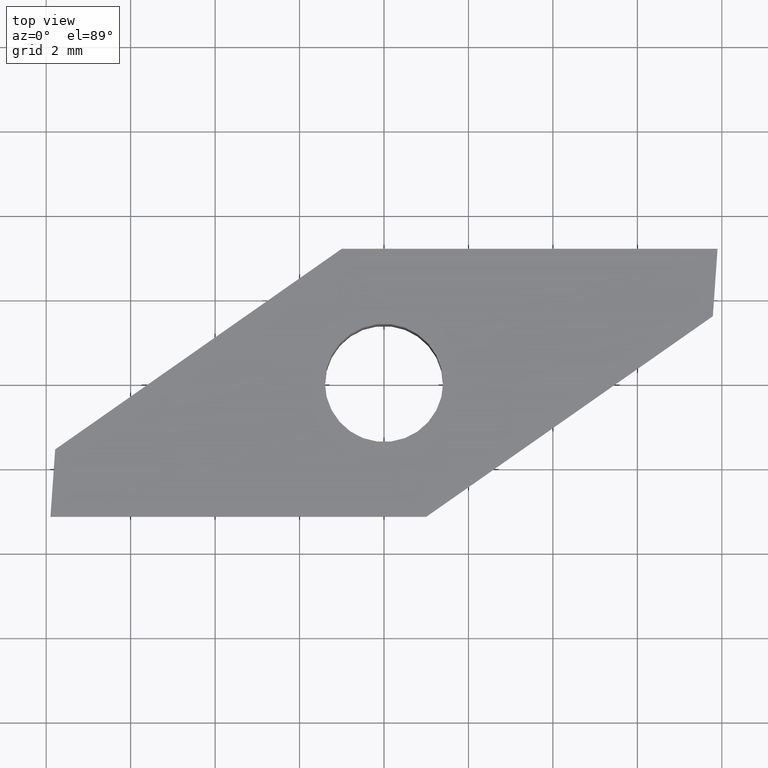
[diagram: clean part render]
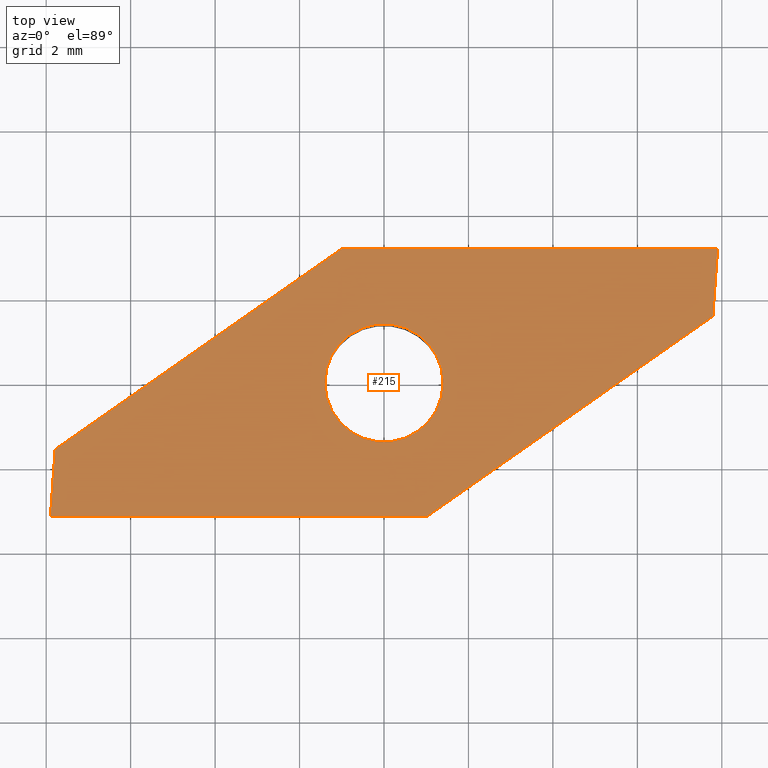
[diagram: same view with one face highlighted and labeled with its STEP entity id]
A machine part, top view. The second image highlights one B-rep face of the part: STEP entity #215.
In plain terms, the highlighted planar face has unit normal (0, 0, -1).
Its self-contained STEP definition (entity closure, byte-faithful):
#7 = VERTEX_POINT ( 'NONE', #110 ) ;
#9 = AXIS2_PLACEMENT_3D ( 'NONE', #133, #132, #345 ) ;
#12 = VERTEX_POINT ( 'NONE', #316 ) ;
#15 = LINE ( 'NONE', #53, #303 ) ;
#19 = ORIENTED_EDGE ( 'NONE', *, *, #319, .T. ) ;
#20 = CARTESIAN_POINT ( 'NONE',  ( 7.900000000000000400, 3.175000000000000700, 0.0000000000000000000 ) ) ;
#35 = VECTOR ( 'NONE', #91, 1000.000000000000200 ) ;
#36 = CARTESIAN_POINT ( 'NONE',  ( -7.788289079147451900, -1.577459403657731600, 0.0000000000000000000 ) ) ;
#45 = DIRECTION ( 'NONE',  ( -1.000000000000000000, -9.744461978823348800E-017, -0.0000000000000000000 ) ) ;
#50 = LINE ( 'NONE', #20, #35 ) ;
#53 = CARTESIAN_POINT ( 'NONE',  ( -1.001073654690764600, 3.174999999999999800, 0.0000000000000000000 ) ) ;
#55 = EDGE_CURVE ( 'NONE', #201, #12, #199, .T. ) ;
#56 = LINE ( 'NONE', #79, #69 ) ;
#64 = CIRCLE ( 'NONE', #282, 1.399999999999999900 ) ;
#66 = VECTOR ( 'NONE', #78, 1000.000000000000000 ) ;
#69 = VECTOR ( 'NONE', #192, 1000.000000000000000 ) ;
#72 = VECTOR ( 'NONE', #312, 1000.000000000000100 ) ;
#76 = LINE ( 'NONE', #347, #66 ) ;
#77 = CARTESIAN_POINT ( 'NONE',  ( 7.900000000000000400, 3.175000000000000700, 0.0000000000000000000 ) ) ;
#78 = DIRECTION ( 'NONE',  ( -0.06975647374412606600, -0.9975640502598242000, -0.0000000000000000000 ) ) ;
#79 = CARTESIAN_POINT ( 'NONE',  ( 1.001073654690762600, -3.174999999999999800, 0.0000000000000000000 ) ) ;
#81 = CARTESIAN_POINT ( 'NONE',  ( -7.900000000000002100, -3.175000000000000700, 0.0000000000000000000 ) ) ;
#83 = DIRECTION ( 'NONE',  ( 1.000000000000000000, 0.0000000000000000000, 0.0000000000000000000 ) ) ;
#84 = DIRECTION ( 'NONE',  ( 0.0000000000000000000, 0.0000000000000000000, 1.000000000000000000 ) ) ;
#87 = CARTESIAN_POINT ( 'NONE',  ( 0.0000000000000000000, 0.0000000000000000000, 0.0000000000000000000 ) ) ;
#91 = DIRECTION ( 'NONE',  ( 0.06975647374412544100, 0.9975640502598242000, -0.0000000000000000000 ) ) ;
#110 = CARTESIAN_POINT ( 'NONE',  ( -1.001073654690764600, 3.174999999999999800, 0.0000000000000000000 ) ) ;
#114 = DIRECTION ( 'NONE',  ( 0.8191520442889952400, 0.5735764363510412700, -0.0000000000000000000 ) ) ;
#119 = CARTESIAN_POINT ( 'NONE',  ( -7.788289079147451900, -1.577459403657731600, 0.0000000000000000000 ) ) ;
#124 = LINE ( 'NONE', #119, #72 ) ;
#131 = CARTESIAN_POINT ( 'NONE',  ( 7.788289079147451100, 1.577459403657729400, 0.0000000000000000000 ) ) ;
#132 = DIRECTION ( 'NONE',  ( 0.0000000000000000000, 0.0000000000000000000, 1.000000000000000000 ) ) ;
#133 = CARTESIAN_POINT ( 'NONE',  ( 0.0000000000000000000, 0.0000000000000000000, 0.0000000000000000000 ) ) ;
#134 = CARTESIAN_POINT ( 'NONE',  ( 0.0000000000000000000, 0.0000000000000000000, 0.0000000000000000000 ) ) ;
#141 = DIRECTION ( 'NONE',  ( 0.0000000000000000000, 0.0000000000000000000, -1.000000000000000000 ) ) ;
#146 = PLANE ( 'NONE',  #335 ) ;
#149 = CIRCLE ( 'NONE', #9, 1.399999999999999900 ) ;
#155 = DIRECTION ( 'NONE',  ( -1.000000000000000000, 0.0000000000000000000, -0.0000000000000000000 ) ) ;
#157 = FACE_OUTER_BOUND ( 'NONE', #321, .T. ) ;
#168 = FACE_BOUND ( 'NONE', #320, .T. ) ;
#185 = CARTESIAN_POINT ( 'NONE',  ( 1.399999999999999900, 0.0000000000000000000, 0.0000000000000000000 ) ) ;
#190 = VECTOR ( 'NONE', #114, 1000.000000000000100 ) ;
#192 = DIRECTION ( 'NONE',  ( 1.000000000000000000, 9.744461978823348800E-017, -0.0000000000000000000 ) ) ;
#199 = LINE ( 'NONE', #131, #190 ) ;
#201 = VERTEX_POINT ( 'NONE', #325 ) ;
#215 = ADVANCED_FACE ( 'NONE', ( #168, #157 ), #146, .F. ) ;
#216 = VERTEX_POINT ( 'NONE', #185 ) ;
#221 = EDGE_CURVE ( 'NONE', #216, #240, #149, .T. ) ;
#240 = VERTEX_POINT ( 'NONE', #296 ) ;
#244 = EDGE_CURVE ( 'NONE', #7, #294, #124, .T. ) ;
#269 = ORIENTED_EDGE ( 'NONE', *, *, #221, .F. ) ;
#270 = ORIENTED_EDGE ( 'NONE', *, *, #326, .F. ) ;
#271 = ORIENTED_EDGE ( 'NONE', *, *, #286, .T. ) ;
#272 = ORIENTED_EDGE ( 'NONE', *, *, #317, .T. ) ;
#275 = ORIENTED_EDGE ( 'NONE', *, *, #55, .T. ) ;
#278 = ORIENTED_EDGE ( 'NONE', *, *, #356, .T. ) ;
#280 = ORIENTED_EDGE ( 'NONE', *, *, #244, .T. ) ;
#282 = AXIS2_PLACEMENT_3D ( 'NONE', #87, #84, #83 ) ;
#286 = EDGE_CURVE ( 'NONE', #294, #327, #76, .T. ) ;
#294 = VERTEX_POINT ( 'NONE', #36 ) ;
#296 = CARTESIAN_POINT ( 'NONE',  ( -1.399999999999999900, 1.714505518806294100E-016, 0.0000000000000000000 ) ) ;
#302 = VERTEX_POINT ( 'NONE', #77 ) ;
#303 = VECTOR ( 'NONE', #45, 1000.000000000000000 ) ;
#312 = DIRECTION ( 'NONE',  ( -0.8191520442889951300, -0.5735764363510415000, -0.0000000000000000000 ) ) ;
#316 = CARTESIAN_POINT ( 'NONE',  ( 7.788289079147451100, 1.577459403657729400, 0.0000000000000000000 ) ) ;
#317 = EDGE_CURVE ( 'NONE', #327, #201, #56, .T. ) ;
#319 = EDGE_CURVE ( 'NONE', #12, #302, #50, .T. ) ;
#320 = EDGE_LOOP ( 'NONE', ( #269, #270 ) ) ;
#321 = EDGE_LOOP ( 'NONE', ( #271, #272, #275, #19, #278, #280 ) ) ;
#325 = CARTESIAN_POINT ( 'NONE',  ( 1.001073654690762600, -3.174999999999999800, 0.0000000000000000000 ) ) ;
#326 = EDGE_CURVE ( 'NONE', #240, #216, #64, .T. ) ;
#327 = VERTEX_POINT ( 'NONE', #81 ) ;
#335 = AXIS2_PLACEMENT_3D ( 'NONE', #134, #141, #155 ) ;
#345 = DIRECTION ( 'NONE',  ( 1.000000000000000000, 0.0000000000000000000, 0.0000000000000000000 ) ) ;
#347 = CARTESIAN_POINT ( 'NONE',  ( -7.900000000000002100, -3.175000000000000700, 0.0000000000000000000 ) ) ;
#356 = EDGE_CURVE ( 'NONE', #302, #7, #15, .T. ) ;